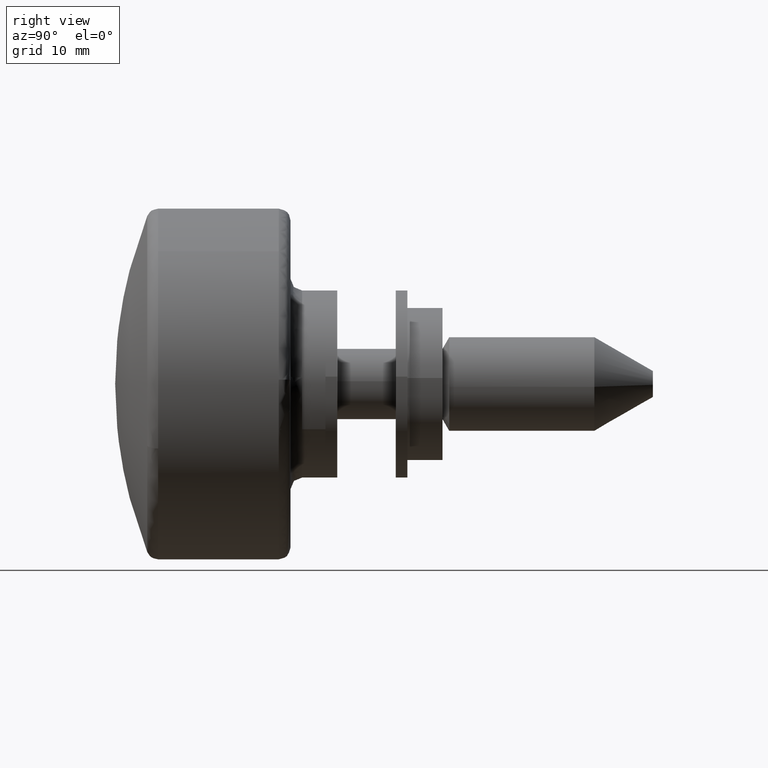
[diagram: clean part render]
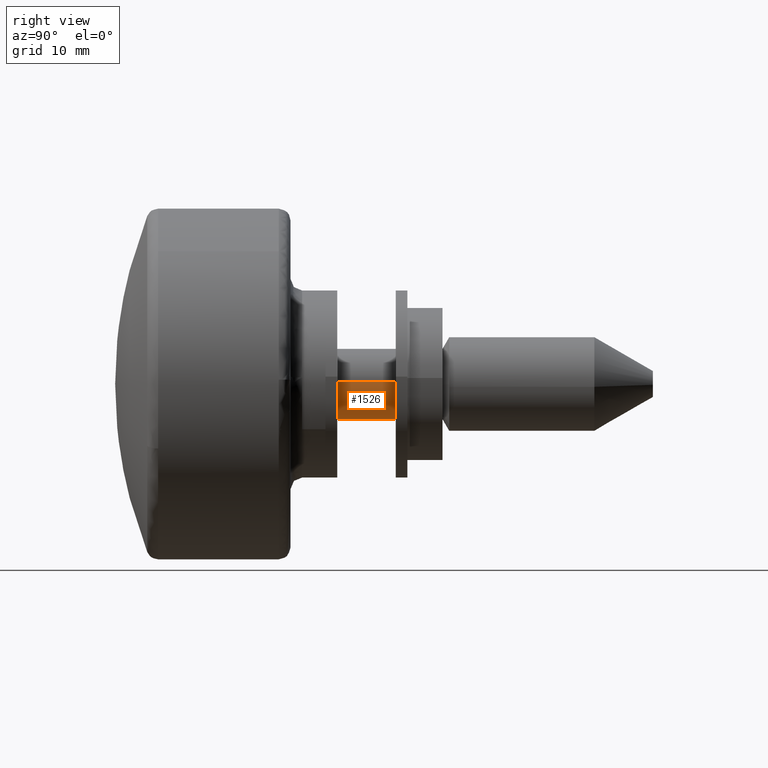
[diagram: same view with one face highlighted and labeled with its STEP entity id]
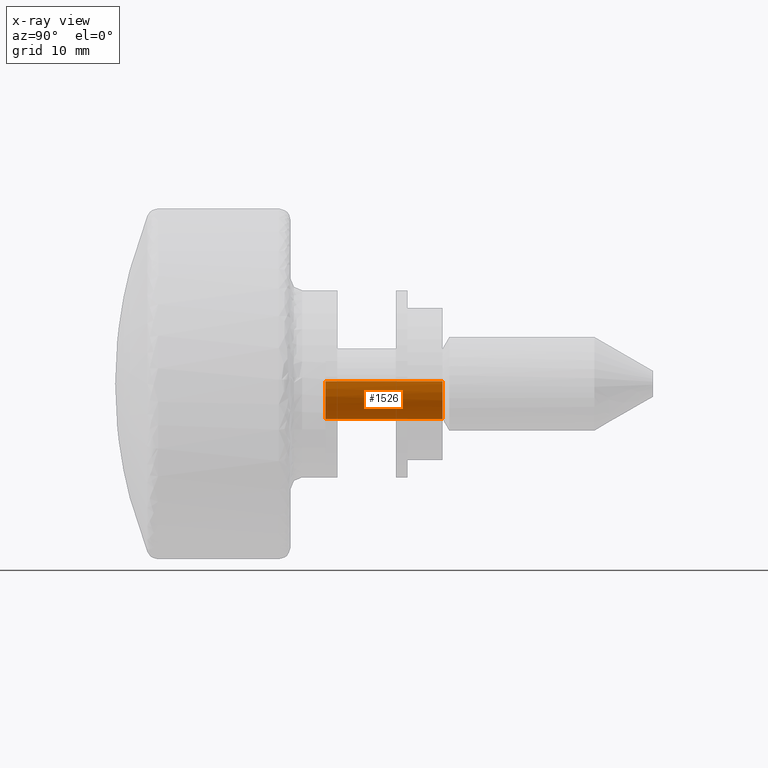
[diagram: x-ray of the same camera — body ghosted, the highlighted face saturated]
A machine part, right view. The second image highlights one B-rep face of the part: STEP entity #1526.
The next image is the same camera in x-ray: the body ghosted, the highlighted face saturated — about 1% of this face is hidden behind the body in this view.
In plain terms, the highlighted face is a freeform B-spline surface patch.
Its self-contained STEP definition (entity closure, byte-faithful):
#968=CARTESIAN_POINT('',(10.000000000002990,-1.557161617628177,-2.564224579988406));
#969=VERTEX_POINT('',#968);
#970=CARTESIAN_POINT('',(10.0,0.0,-3.0));
#971=VERTEX_POINT('',#970);
#972=CARTESIAN_POINT('',(10.000000000002991,-1.557161617628177,-2.564224579988406));
#973=CARTESIAN_POINT('',(10.0,-0.839557208014433,-3.000000000000000));
#974=CARTESIAN_POINT('',(10.0,0.0,-3.0));
#982=(BOUNDED_CURVE()B_SPLINE_CURVE(2,(#972,#973,#974),.UNSPECIFIED.,.F.,.U.)B_SPLINE_CURVE_WITH_KNOTS((3,3),(0.911335145365692,1.0),.UNSPECIFIED.)CURVE()GEOMETRIC_REPRESENTATION_ITEM()RATIONAL_B_SPLINE_CURVE((0.865927475713628,0.896122661322123,1.0))REPRESENTATION_ITEM(''));
#983=EDGE_CURVE('',#969,#971,#982,.T.);
#985=CARTESIAN_POINT('',(10.0,2.990752001195804,-0.235377287229015));
#986=VERTEX_POINT('',#985);
#987=CARTESIAN_POINT('',(10.0,0.0,-3.0));
#988=CARTESIAN_POINT('',(10.0,2.773171474890023,-3.0));
#989=CARTESIAN_POINT('',(10.0,2.990752001195804,-0.235377287229015));
#997=(BOUNDED_CURVE()B_SPLINE_CURVE(2,(#987,#988,#989),.UNSPECIFIED.,.F.,.U.)B_SPLINE_CURVE_WITH_KNOTS((3,3),(0.0,0.236331300627554),.UNSPECIFIED.)CURVE()GEOMETRIC_REPRESENTATION_ITEM()RATIONAL_B_SPLINE_CURVE((1.0,0.723120658611305,0.969723356160936))REPRESENTATION_ITEM(''));
#998=EDGE_CURVE('',#971,#986,#997,.T.);
#1017=CARTESIAN_POINT('',(10.0,-2.990752001195804,0.235377287229015));
#1018=VERTEX_POINT('',#1017);
#1032=CARTESIAN_POINT('',(10.000000000046571,-2.999885769268638,-0.026179607021528));
#1033=VERTEX_POINT('',#1032);
#1034=CARTESIAN_POINT('',(10.0,-2.990752001195804,0.235377287229015));
#1035=CARTESIAN_POINT('',(10.0,-3.000000000000000,0.117870321068699));
#1036=CARTESIAN_POINT('',(10.0,-3.0,0.0));
#1037=CARTESIAN_POINT('',(10.0,-3.000000000000000,-0.013090052987843));
#1038=CARTESIAN_POINT('',(10.000000000046573,-2.999885769268638,-0.026179607021528));
#1046=(BOUNDED_CURVE()B_SPLINE_CURVE(2,(#1034,#1035,#1036,#1037,#1038),.UNSPECIFIED.,.F.,.U.)B_SPLINE_CURVE_WITH_KNOTS((3,2,3),(0.736331300627553,0.750000000000000,0.751539894396723),.UNSPECIFIED.)CURVE()GEOMETRIC_REPRESENTATION_ITEM()RATIONAL_B_SPLINE_CURVE((0.969723356160935,0.983986122575243,1.0,0.998195901494044,0.996414027957533))REPRESENTATION_ITEM(''));
#1047=EDGE_CURVE('',#1018,#1033,#1046,.T.);
#1142=CARTESIAN_POINT('',(10.000000000046573,-2.999885769268638,-0.026179607021528));
#1143=CARTESIAN_POINT('',(10.0,-2.985305051523058,-1.696964295049045));
#1144=CARTESIAN_POINT('',(10.000000000002993,-1.557161617628176,-2.564224579988407));
#1152=(BOUNDED_CURVE()B_SPLINE_CURVE(2,(#1142,#1143,#1144),.UNSPECIFIED.,.F.,.U.)B_SPLINE_CURVE_WITH_KNOTS((3,3),(0.751539894396722,0.911335145365692),.UNSPECIFIED.)CURVE()GEOMETRIC_REPRESENTATION_ITEM()RATIONAL_B_SPLINE_CURVE((0.996414027957534,0.811508537316168,0.865927475713628))REPRESENTATION_ITEM(''));
#1153=EDGE_CURVE('',#1033,#969,#1152,.T.);
#1458=CARTESIAN_POINT('',(10.250000000000000,2.990752001199383,-0.235377287183537));
#1459=CARTESIAN_POINT('',(10.250000000000002,2.755374714015846,-3.226129288382921));
#1460=CARTESIAN_POINT('',(10.250000000000000,-0.235377287183537,-2.990752001199383));
#1461=CARTESIAN_POINT('',(10.250000000000002,-3.226129288382921,-2.755374714015846));
#1462=CARTESIAN_POINT('',(10.250000000000000,-2.990752001199383,0.235377287183537));
#1463=CARTESIAN_POINT('',(-0.256250000000001,2.990752001199383,-0.235377287183537));
#1464=CARTESIAN_POINT('',(-0.256250000000001,2.755374714015846,-3.226129288382921));
#1465=CARTESIAN_POINT('',(-0.256250000000001,-0.235377287183537,-2.990752001199383));
#1466=CARTESIAN_POINT('',(-0.256250000000001,-3.226129288382921,-2.755374714015846));
#1467=CARTESIAN_POINT('',(-0.256250000000001,-2.990752001199383,0.235377287183537));
#1475=(BOUNDED_SURFACE()B_SPLINE_SURFACE(2,1,((#1458,#1463),(#1459,#1464),(#1460,#1465),(#1461,#1466),(#1462,#1467)),.UNSPECIFIED.,.F.,.F.,.U.)B_SPLINE_SURFACE_WITH_KNOTS((3,2,3),(2,2),(0.0,4.970562748477140,9.941125496954280),(0.0,10.506250000000000),.UNSPECIFIED.)GEOMETRIC_REPRESENTATION_ITEM()RATIONAL_B_SPLINE_SURFACE(((1.0,1.0),(0.707106781186548,0.707106781186548),(1.0,1.0),(0.707106781186548,0.707106781186548),(1.0,1.0)))REPRESENTATION_ITEM('')SURFACE());
#1476=ORIENTED_EDGE('',*,*,#998,.F.);
#1477=ORIENTED_EDGE('',*,*,#983,.F.);
#1478=ORIENTED_EDGE('',*,*,#1153,.F.);
#1479=ORIENTED_EDGE('',*,*,#1047,.F.);
#1480=CARTESIAN_POINT('',(2.775558E-017,-2.990752001195804,0.235377287229016));
#1481=VERTEX_POINT('',#1480);
#1482=CARTESIAN_POINT('',(10.0,-2.990752001195804,0.235377287229015));
#1483=CARTESIAN_POINT('',(2.775558E-017,-2.990752001195804,0.235377287229016));
#1484=QUASI_UNIFORM_CURVE('',1,(#1482,#1483),.UNSPECIFIED.,.F.,.U.);
#1485=EDGE_CURVE('',#1018,#1481,#1484,.T.);
#1486=ORIENTED_EDGE('',*,*,#1485,.T.);
#1487=CARTESIAN_POINT('',(0.0,0.0,-3.0));
#1488=VERTEX_POINT('',#1487);
#1489=CARTESIAN_POINT('',(2.775558E-017,-2.990752001195804,0.235377287229016));
#1490=CARTESIAN_POINT('',(0.0,-3.0,0.117870321068700));
#1491=CARTESIAN_POINT('',(0.0,-3.0,0.0));
#1492=CARTESIAN_POINT('',(0.0,-3.0,-3.0));
#1493=CARTESIAN_POINT('',(0.0,0.0,-3.0));
#1501=(BOUNDED_CURVE()B_SPLINE_CURVE(2,(#1489,#1490,#1491,#1492,#1493),.UNSPECIFIED.,.F.,.U.)B_SPLINE_CURVE_WITH_KNOTS((3,2,3),(0.736331300627553,0.750000000000000,1.0),.UNSPECIFIED.)CURVE()GEOMETRIC_REPRESENTATION_ITEM()RATIONAL_B_SPLINE_CURVE((0.969723356160935,0.983986122575243,1.0,0.707106781186548,1.0))REPRESENTATION_ITEM(''));
#1502=EDGE_CURVE('',#1481,#1488,#1501,.T.);
#1503=ORIENTED_EDGE('',*,*,#1502,.T.);
#1504=CARTESIAN_POINT('',(2.775558E-017,2.990752001195804,-0.235377287229015));
#1505=VERTEX_POINT('',#1504);
#1506=CARTESIAN_POINT('',(0.0,0.0,-3.0));
#1507=CARTESIAN_POINT('',(0.0,2.773171474890023,-3.0));
#1508=CARTESIAN_POINT('',(2.775558E-017,2.990752001195804,-0.235377287229015));
#1516=(BOUNDED_CURVE()B_SPLINE_CURVE(2,(#1506,#1507,#1508),.UNSPECIFIED.,.F.,.U.)B_SPLINE_CURVE_WITH_KNOTS((3,3),(0.0,0.236331300627554),.UNSPECIFIED.)CURVE()GEOMETRIC_REPRESENTATION_ITEM()RATIONAL_B_SPLINE_CURVE((1.0,0.723120658611305,0.969723356160936))REPRESENTATION_ITEM(''));
#1517=EDGE_CURVE('',#1488,#1505,#1516,.T.);
#1518=ORIENTED_EDGE('',*,*,#1517,.T.);
#1519=CARTESIAN_POINT('',(10.0,2.990752001195804,-0.235377287229015));
#1520=CARTESIAN_POINT('',(2.775558E-017,2.990752001195804,-0.235377287229015));
#1521=QUASI_UNIFORM_CURVE('',1,(#1519,#1520),.UNSPECIFIED.,.F.,.U.);
#1522=EDGE_CURVE('',#986,#1505,#1521,.T.);
#1523=ORIENTED_EDGE('',*,*,#1522,.F.);
#1524=EDGE_LOOP('',(#1476,#1477,#1478,#1479,#1486,#1503,#1518,#1523));
#1525=FACE_OUTER_BOUND('',#1524,.T.);
#1526=ADVANCED_FACE('',(#1525),#1475,.T.);